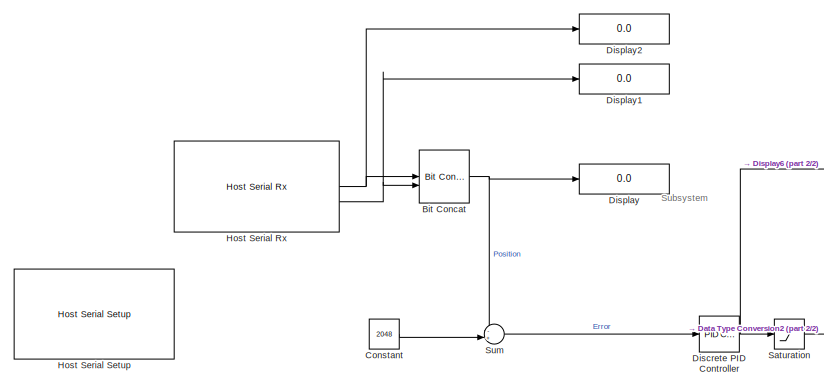
[diagram: root canvas - part 1/2, top left region]
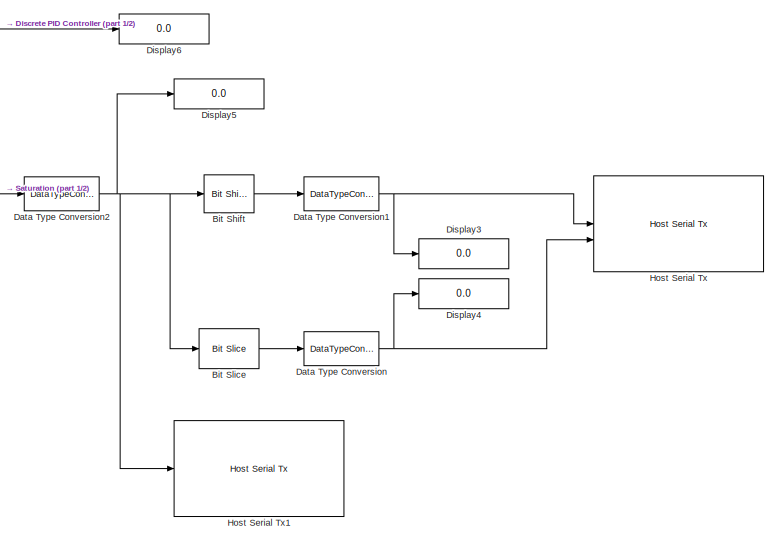
[diagram: root canvas - part 2/2, right side, full height]
MODEL slx_977c5bc0b7bd
KIND model
CONFIG AbsTol = auto
CONFIG EnableMultiTasking = off
CONFIG FixedStep = 0.01
CONFIG MaxStep = auto
CONFIG MinStep = auto
CONFIG RelTol = 1e-3
CONFIG SampleTimeConstraint = Unconstrained
CONFIG SolverName = FixedStepAuto
CONFIG StartTime = 0.0
CONFIG StopTime = inf
BLOCK [Reference] Bit Concat  REF=hdlsllib/Logic and Bit
Operations/Bit Concat
  SourceBlock = hdlsllib/Logic and Bit\nOperations/Bit Concat
  SourceType = Bit Concat
BLOCK [Reference] Bit Shift  REF=hdlsllib/Logic and Bit
Operations/Bit Shift
  SourceBlock = hdlsllib/Logic and Bit\nOperations/Bit Shift
  SourceType = Bit Shift
BLOCK [Reference] Bit Slice  REF=hdlsllib/Logic and Bit
Operations/Bit Slice
  SourceBlock = hdlsllib/Logic and Bit\nOperations/Bit Slice
  SourceType = Bit Slice
BLOCK [Constant] Constant
  Value = 2048
BLOCK [DataTypeConversion] Data Type Conversion
  OutDataTypeStr = int8
  RndMeth = Floor
  SaturateOnIntegerOverflow = off
BLOCK [DataTypeConversion] Data Type Conversion1
  OutDataTypeStr = int8
  RndMeth = Floor
  SaturateOnIntegerOverflow = off
BLOCK [DataTypeConversion] Data Type Conversion2
  OutDataTypeStr = int16
  RndMeth = Floor
  SaturateOnIntegerOverflow = off
BLOCK [Reference] Discrete PID Controller  REF=slpidlib/PID Controller
  LibrarySourceBlock = simulink/Discrete/Discrete PID Controller
  SourceBlock = slpidlib/PID Controller
  SourceType = PID 1dof
BLOCK [Display] Display
  Decimation = 1
BLOCK [Display] Display1
  Decimation = 1
BLOCK [Display] Display2
  Decimation = 1
BLOCK [Display] Display3
  Decimation = 1
BLOCK [Display] Display4
  Decimation = 1
BLOCK [Display] Display5
  Decimation = 1
  Format = long
BLOCK [Display] Display6
  Decimation = 1
  Format = long
BLOCK [Reference] Host Serial Rx  REF=waijung2_host_serial_port_lib/Host Serial Rx
  SourceBlock = waijung2_host_serial_port_lib/Host Serial Rx
  SourceProductName = Waijung 2 Blockset
  SourceType = waijung2_serial
BLOCK [Reference] Host Serial Setup  REF=waijung2_host_serial_port_lib/Host Serial Setup
  SourceBlock = waijung2_host_serial_port_lib/Host Serial Setup
  SourceProductName = Waijung 2 Blockset
  SourceType = waijung2_serial
BLOCK [Reference] Host Serial Tx  REF=waijung2_host_serial_port_lib/Host Serial Tx
  Commented = on
  SourceBlock = waijung2_host_serial_port_lib/Host Serial Tx
  SourceProductName = Waijung 2 Blockset
  SourceType = waijung2_serial
BLOCK [Reference] Host Serial Tx1  REF=waijung2_host_serial_port_lib/Host Serial Tx
  SourceBlock = waijung2_host_serial_port_lib/Host Serial Tx
  SourceProductName = Waijung 2 Blockset
  SourceType = waijung2_serial
BLOCK [Saturate] Saturation
  LowerLimit = -1000
  UpperLimit = 1000
BLOCK [Sum] Sum
  Inputs = -+|
ANNOTATION (root): Subsystem
NET Bit Concat:1 -> Display:1, Sum:1
LINE Bit Shift:1 -> Data Type Conversion1:1
LINE Bit Slice:1 -> Data Type Conversion:1
LINE Constant:1 -> Sum:2
NET Data Type Conversion1:1 -> Display3:1, Host Serial Tx:1
NET Data Type Conversion2:1 -> Bit Shift:1, Bit Slice:1, Display5:1, Host Serial Tx1:1
NET Data Type Conversion:1 -> Display4:1, Host Serial Tx:2
NET Discrete PID Controller:1 -> Display6:1, Saturation:1
NET Host Serial Rx:1 -> Bit Concat:1, Display2:1
NET Host Serial Rx:2 -> Bit Concat:2, Display1:1
LINE Saturation:1 -> Data Type Conversion2:1
LINE Sum:1 -> Discrete PID Controller:1
note: NET lines group one-source signal fan-out (src -> all destinations, sorted); 1:1 wires keep LINE
